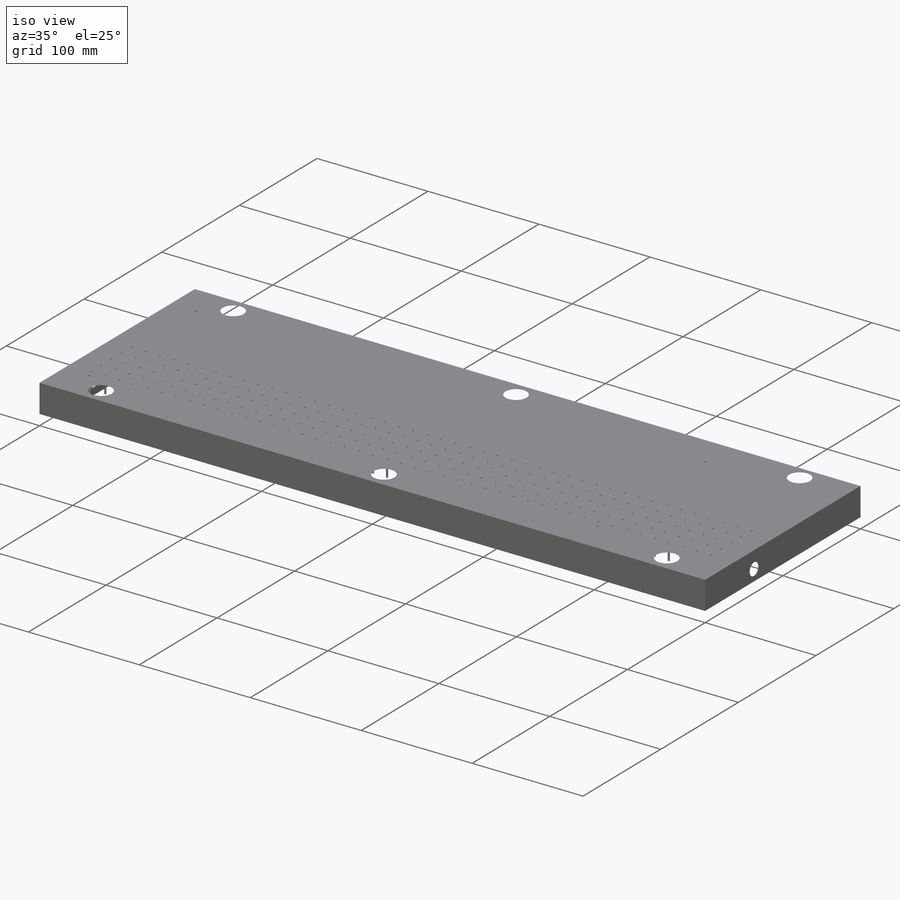
[diagram: iso view]
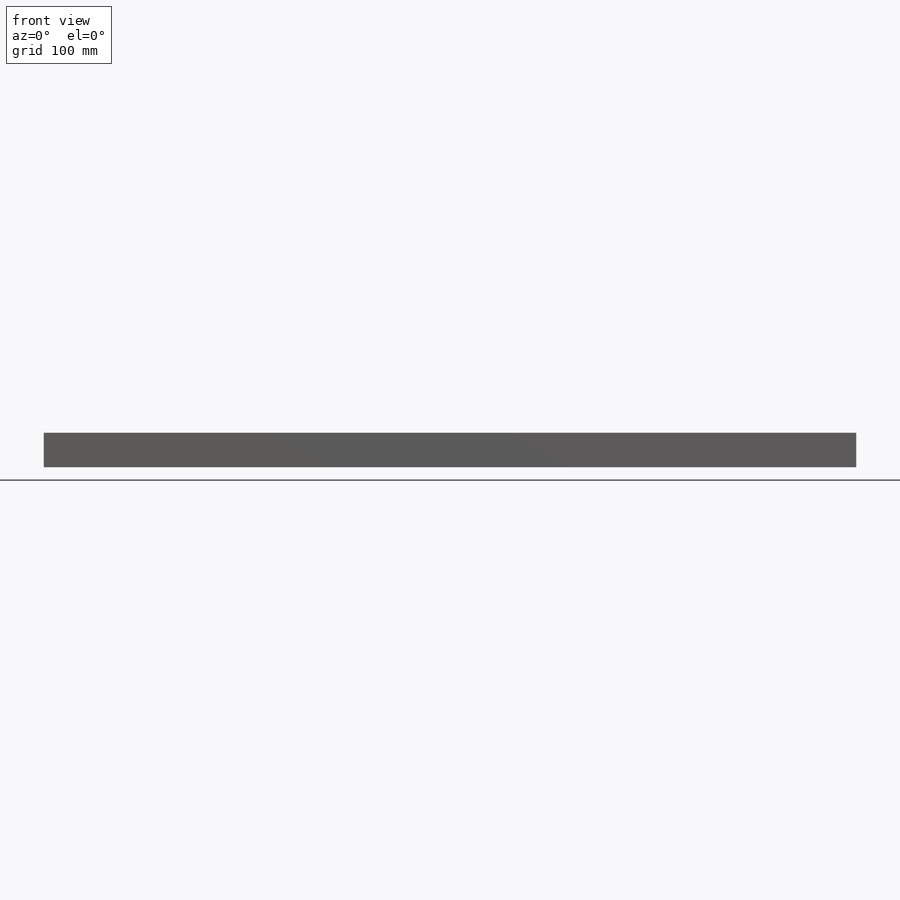
[diagram: front view]
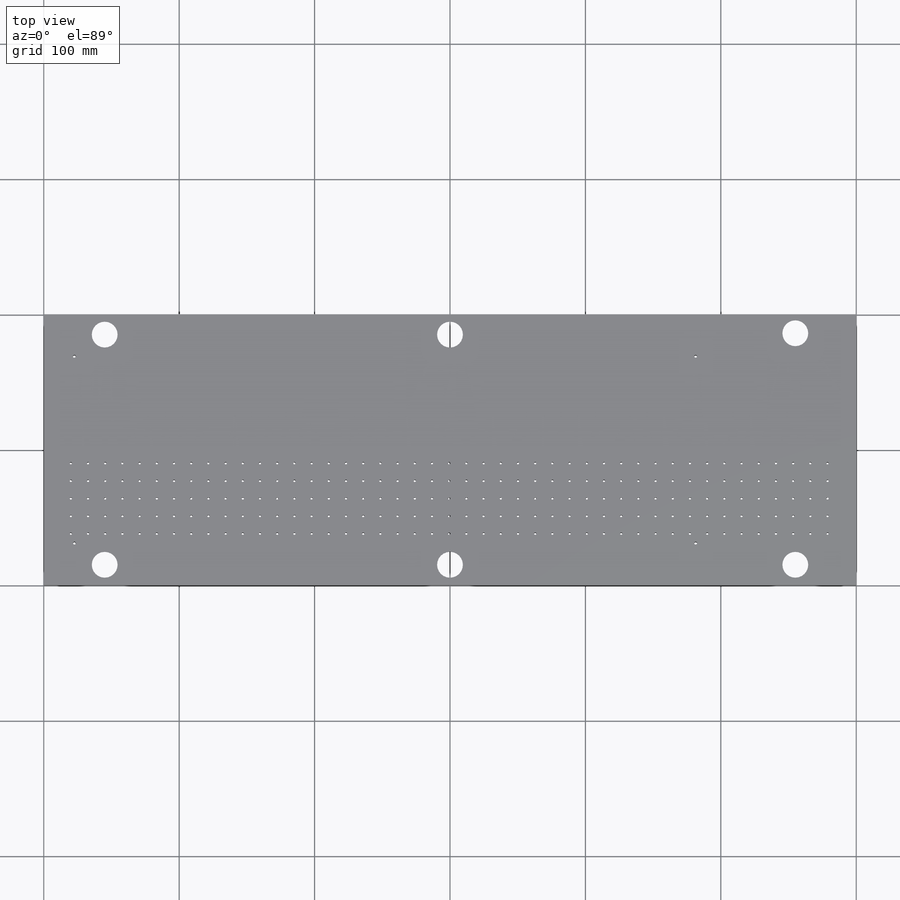
[diagram: top view]
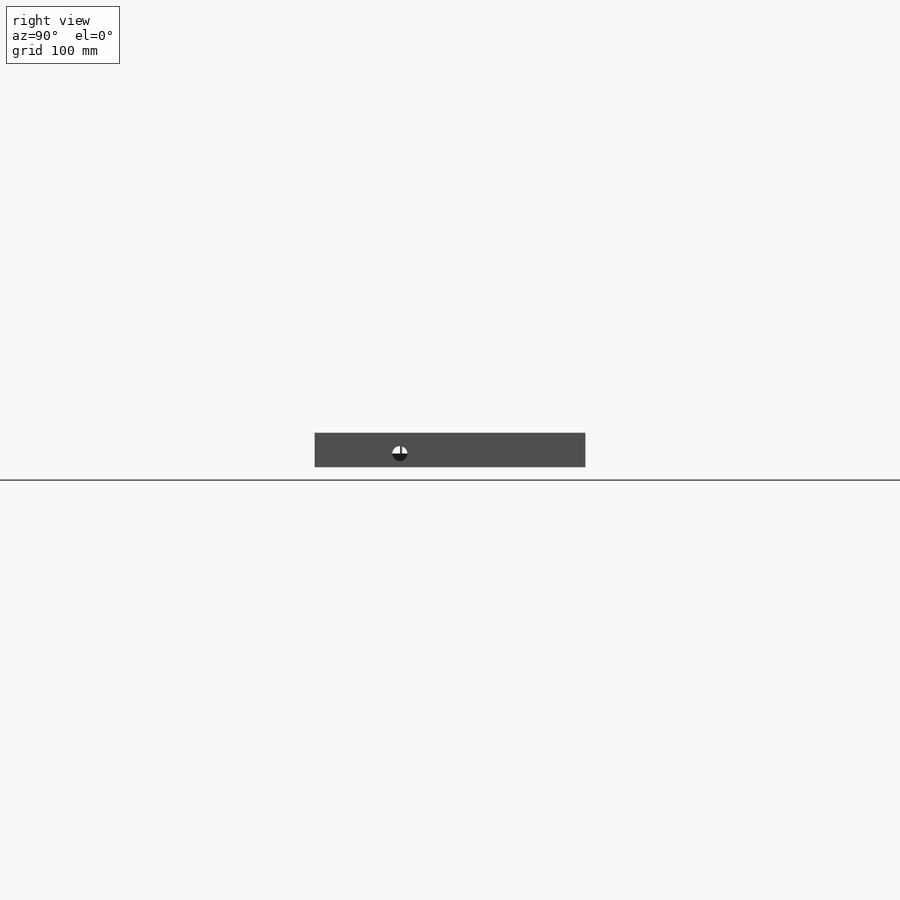
[diagram: right view]
SOLIDWORKS PART (.sldprt)
format: sldprt  version: not decoded by parser v0  size: 867,328 bytes
history: native  units: mm
features: sketch x7, cut_extrude x4, material x1, extrude x1, hole x1 (+11 scaffold rows collapsed)
feature tree (25):
  scaffold x11  (default folders/planes/origin — collapsed)
  material  "Material <not specified>"
  sketch  "Sketch1"  dims[c1.D1=4.0mm c1.D2=4.0mm c1.D3=2.0mm c2.D1=138.0mm c2.D2=458.8mm]
  extrude  "Boss-Extrude1"  Depth=25.4mm
  sketch  "Sketch3"  dims[c1.D1=1.5876mm c1.D2=2.0mm c2.D1=20.0mm c2.D2=7.0mm c2.D5=12.7mm c2.D6=13.0mm c2.D3=45.0 c2.D4=5.0]
  cut_extrude  "Cut-Extrude1"  [1 undecoded]
  sketch  "Sketch4"  dims[c1.D1=1.5876mm c1.D2=1.5876mm c1.D4=1.5876mm c1.D5=6.345mm c1.D6=6.345mm c1.D7=6.345mm c1.D8=6.345mm c1.D13=6.345mm c1.D14=6.345mm c1.D15=6.345mm c1.D16=6.345mm c2.D1=2.0mm c2.D2=2.0mm c2.D3=2.0mm c2.D4=2.0mm c2.D9=6.0mm c2.D10=6.0mm c2.D11=6.0mm c2.D12=6.0mm]
  cut_extrude  "Cut-Extrude2"  Depth=10mm
  cut_extrude  "Cut-Extrude6"  [1 undecoded]
  sketch  "Sketch4<5>"  dims[D1=3.3mm]
  hole  "Pipe Tap Drill for 1/4 Tap1"  Diameter=11.1252mm Depth=30mm
  sketch  "Sketch11"  dims[D1=62.95mm D2=10.0mm]
  sketch  "Sketch10"  dims[hole-wizard template sketch: 46 standard entries collapsed; hole parameters kept: c15.Hole Dia.=11.1252mm c15.Hole Depth=30.0mm c15.D3=~14.816244mm c15.Drill Angle=118.0deg]
  sketch  "Sketch12"  dims[c1.D1=19.05mm c1.D2=19.05mm c1.D3=19.05mm c1.D5=~26.607587mm c1.D6=~9.017684mm c2.D1=15.0mm c2.D2=45.0mm c2.D3=300.0mm c2.D4=45.0mm c2.D5=14.0mm]
  cut_extrude  "Cut-Extrude4"  [1 undecoded]
decode coverage: 10 of 13 modeling features carry decoded parameters
note: ~ marks probable driven/reference dimensions
note: 3 parameter values undecoded
summary: no parameter record found for 3 features
note: suppression state not decoded; provenance and decode notes live in map.json
